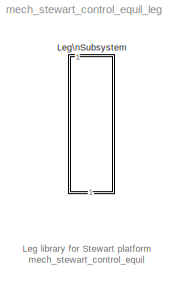
MODEL mech_stewart_control_equil_leg
KIND library
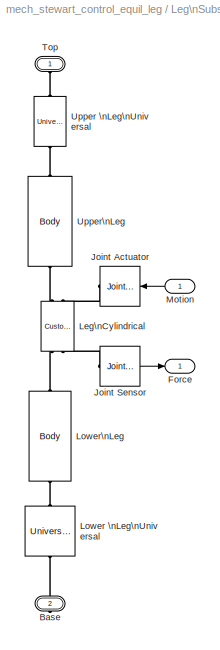
BLOCK [SubSystem] Leg\nSubsystem
  FunctionWithSeparateData = off
  MaskEnableString = on
  MaskHideContents = off
  MaskIconFrame = on
  MaskIconOpaque = on
  MaskIconRotate = none
  MaskIconUnits = autoscale
  MaskPromptString = Leg Number
  MaskStyleString = edit
  MaskToolTipString = on
  MaskTunableValueString = on
  MaskValueString = 1
  MaskVariables = ln=@1;
  MaskVisibilityString = on
  MinAlgLoopOccurrences = off
  Opaque = off
  Ports = [1, 1, 0, 0, 0, 1, 1]
  PropExecContextOutsideSubsystem = off
  RTWSystemCode = Auto
  RequestExecContextInheritance = off
BLOCK [PMIOPort] Leg\nSubsystem/Base
  Port = 2
  Side = Right
BLOCK [Outport] Leg\nSubsystem/Force
  Description = Senses position and velocity of the prismatic axis
  IconDisplay = Port number
  OutDataType = sfix(16)
  OutScaling = 2^0
BLOCK [Reference] Leg\nSubsystem/Joint Actuator  REF=mblibv1/Sensors & \nActuators/Joint Actuator
  AccelerationUnits = m/s^2
  ActiveIO = off
  ActuationStyle = Motion
  AngleUnits = deg
  ArcAccelerationUnits = deg/s^2
  ArcVelocityUnits = deg/s
  ClassName = JointActuator
  CoordPositionUnits = m
  DialogClass = MechanicalActuatorBlock
  DialogController = MECH.DynMechDlgSource
  ForceUnits = N
  FunctionWithSeparateData = off
  PhysicalDomain = Mechanical
  PortType = blob
  Ports = [1, 0, 0, 0, 0, 0, 1]
  Primitive = P1
  RTWMemSecDataConstants = Inherit from model
  RTWMemSecDataInternal = Inherit from model
  RTWMemSecDataParameters = Inherit from model
  RTWMemSecFuncExecute = Inherit from model
  RTWMemSecFuncInitTerm = Inherit from model
  ReferenceFrame = Absolute (INERTIAL)
  ShowPortLabels = FromPortIcon
  SourceBlock = mblibv1/Sensors & \nActuators/Joint Actuator
  SourceType = Joint Actuator
  SystemSampleTime = -1
  TorqueUnits = N-m
  VelocityUnits = m/s
  Width = 1
BLOCK [Reference] Leg\nSubsystem/Joint Sensor  REF=mblibv1/Sensors & \nActuators/Joint Sensor
  Acceleration = off
  AccelerationUnits = m/s^2
  ActiveIO = off
  Angle = on
  AngleUnits = deg
  ArcAcceleration = off
  ArcAccelerationUnits = deg/s^2
  ArcVelocity = off
  ArcVelocityUnits = deg/s
  ClassName = JointSensor
  CoordPosition = off
  CoordPositionUnits = m
  DialogClass = MechanicalSensorBlock
  DialogController = MECH.DynMechDlgSource
  Force = on
  ForceUnits = N
  FunctionWithSeparateData = off
  Muxed = on
  OutputVector = [ 1 ]
  PhysicalDomain = Mechanical
  PortType = blob
  Ports = [0, 1, 0, 0, 0, 1]
  Pose = off
  Primitive = P1
  Quaternion = on
  QuaternionDDT = off
  QuaternionDT = off
  QuaternionUnits = off
  RTWMemSecDataConstants = Inherit from model
  RTWMemSecDataInternal = Inherit from model
  RTWMemSecDataParameters = Inherit from model
  RTWMemSecFuncExecute = Inherit from model
  RTWMemSecFuncInitTerm = Inherit from model
  ReactionForce = off
  ReactionForceUnits = N
  ReactionMoment = off
  ReactionMomentUnits = N-m
  ReactionReferenceFrame = Absolute (World)
  ReactionSensedSide = Base
  ReferenceFrame = Absolute (INERTIAL)
  ShowPortLabels = FromPortIcon
  SourceBlock = mblibv1/Sensors & \nActuators/Joint Sensor
  SourceType = Joint Sensor
  SystemSampleTime = -1
  Torque = off
  TorqueUnits = N-m
  Velocity = off
  VelocityUnits = m/s
  Width = 1
BLOCK [Reference] Leg\nSubsystem/Leg\nCylindrical  REF=mblibv1/Joints/Custom Joint
  ClassName = Joint
  CutJoint = off
  DialogClass = JointBlock
  DialogController = MECH.DynMechDlgSource
  LConnTagsString = __newl0|SA1
  LeftPortType = blob
  MarkAsCut = off
  NumSAPorts = 2
  P1Axis = []
  P2Axis = []
  P3Axis = []
  PhysicalDomain = mechanical
  Ports = [0, 0, 0, 0, 0, 2, 2]
  PrimitiveProps = R1$WORLD$cyl1(ln,:)$revolute#P1$WORLD$cyl1(ln,:)$prismatic
  Primitives = revolute_prismatic
  R1Axis = [0 0 1]
  R2Axis = []
  R3Axis = []
  RConnTagsString = __newr0|SA1
  RightPortType = blob
  SAxis = []
  SourceBlock = mblibv1/Joints/Custom Joint
  SourceType = Custom Joint
  SubClassName = custom_joint
BLOCK [Reference] Leg\nSubsystem/Lower \nLeg\nUniversal  REF=mblibv1/Joints/Universal
  ClassName = Joint
  CutJoint = off
  DialogClass = JointBlock
  DialogController = MECH.DynMechDlgSource
  LConnTagsString = __newl0
  LeftPortType = blob
  MarkAsCut = off
  NumSAPorts = 0
  PhysicalDomain = mechanical
  Ports = [0, 0, 0, 0, 0, 1, 1]
  PrimitiveProps = R1$WORLD$rev1(ln,:)$revolute#R2$WORLD$rev2(ln,:)$revolute
  Primitives = revolute_revolute
  R1Axis = [0 0 1]
  R2Axis = [0 1 0]
  RConnTagsString = __newr0
  RightPortType = blob
  SourceBlock = mblibv1/Joints/Universal
  SourceType = Universal
  SubClassName = Unknown
BLOCK [Reference] Leg\nSubsystem/Lower\nLeg  REF=mblibv1/Bodies/Body
  AttachedToCS = 1
  BodyColor = [0.5 0.5 0.5]
  CG = Left$CG$lower_leg(ln).origin$WORLD$WORLD$m$lower_leg(ln).rotation$3x3 Transform$deg$WORLD$false
  CGPos = [0 0 0]
  CGRot = [0 0 0]
  CS0Pos = []
  CS0Rot = []
  CS10Pos = []
  CS10Rot = []
  CS11Pos = []
  CS11Rot = []
  CS12Pos = []
  CS12Rot = []
  CS13Pos = []
  CS13Rot = []
  CS14Pos = []
  CS14Rot = []
  CS15Pos = []
  CS15Rot = []
  CS16Pos = []
  CS16Rot = []
  CS17Pos = []
  CS17Rot = []
  CS18Pos = []
  CS18Rot = []
  CS19Pos = []
  CS19Rot = []
  CS1Pos = [0 0 0]
  CS1Rot = [0 0 0]
  CS20Pos = []
  CS20Rot = []
  CS2Pos = [0 0 0]
  CS2Rot = [0 0 0]
  CS3Pos = []
  CS3Rot = []
  CS4Pos = []
  CS4Rot = []
  CS5Pos = []
  CS5Rot = []
  CS6Pos = []
  CS6Rot = []
  CS7Pos = []
  CS7Rot = []
  CS8Pos = []
  CS8Rot = []
  CS9Pos = []
  CS9Rot = []
  ClassName = Body
  Density = 1
  DensityUnits = kg/m^3
  DensityUse = false
  DialogClass = MechanicalBodyBlock
  DialogController = MECH.DynMechDlgSource
  GraphicsMode = 1
  GraphicsObj = []
  Inertia = lower_leg_inertia
  InertiaUnits = kg*m^2
  LConnTagsString = CS1
  LeftPortType = workingframe
  Mass = lower_leg_mass
  MassUnits = kg
  PhysicalDomain = mechanical
  Ports = [0, 0, 0, 0, 0, 1, 1]
  RConnTagsString = CS3
  RightPortType = workingframe
  Shape = Cylinder
  ShapeDims = [1 1]
  ShapeUnits = m
  ShapeUse = false
  SourceBlock = mblibv1/Bodies/Body
  SourceType = Body
  SubClassName = Unknown
  WorkingFrames = Left$CS1$pos_base(ln,:)$WORLD$WORLD$m$lower_leg(ln).rotation$3x3 Transform$deg$WORLD$true#Right$CS3$(lower_leg(ln).end_point + upper_leg(ln).end_point)/2$WORLD$WORLD$m$lower_leg(ln).rotation$3x3 Transform$deg$WORLD$true#Right$CS2$lower_leg(ln).end_point$WORLD$WORLD$m$lower_leg(ln).rotation$3x3 Transform$deg$WORLD$false
BLOCK [Inport] Leg\nSubsystem/Motion
  Description = Applies a force (N) to the prismatic axis
  IconDisplay = Port number
  OutDataType = sfix(16)
  OutScaling = 2^0
BLOCK [PMIOPort] Leg\nSubsystem/Top
  Port = 1
  Side = Left
BLOCK [Reference] Leg\nSubsystem/Upper \nLeg\nUniversal  REF=mblibv1/Joints/Universal
  ClassName = Joint
  CutJoint = off
  DialogClass = JointBlock
  DialogController = MECH.DynMechDlgSource
  LConnTagsString = __newl0
  LeftPortType = blob
  MarkAsCut = off
  NumSAPorts = 0
  PhysicalDomain = mechanical
  Ports = [0, 0, 0, 0, 0, 1, 1]
  PrimitiveProps = R1$WORLD$rev3(ln,:)$revolute#R2$WORLD$rev4(ln,:)$revolute
  Primitives = revolute_revolute
  R1Axis = [0 0 1]
  R2Axis = [0 1 0]
  RConnTagsString = __newr0
  RightPortType = blob
  SourceBlock = mblibv1/Joints/Universal
  SourceType = Universal
  SubClassName = Unknown
BLOCK [Reference] Leg\nSubsystem/Upper\nLeg  REF=mblibv1/Bodies/Body
  AttachedToCS = 1
  BodyColor = [0.5 0.5 0.5]
  CG = Left$CG$upper_leg(ln).origin$WORLD$WORLD$m$upper_leg(ln).rotation$3x3 Transform$deg$WORLD$false
  CGPos = [0 0 0]
  CGRot = [0 0 0]
  CS0Pos = []
  CS0Rot = []
  CS10Pos = []
  CS10Rot = []
  CS11Pos = []
  CS11Rot = []
  CS12Pos = []
  CS12Rot = []
  CS13Pos = []
  CS13Rot = []
  CS14Pos = []
  CS14Rot = []
  CS15Pos = []
  CS15Rot = []
  CS16Pos = []
  CS16Rot = []
  CS17Pos = []
  CS17Rot = []
  CS18Pos = []
  CS18Rot = []
  CS19Pos = []
  CS19Rot = []
  CS1Pos = [0 0 0]
  CS1Rot = [0 0 0]
  CS20Pos = []
  CS20Rot = []
  CS2Pos = [0 0 0]
  CS2Rot = [0 0 0]
  CS3Pos = []
  CS3Rot = []
  CS4Pos = []
  CS4Rot = []
  CS5Pos = []
  CS5Rot = []
  CS6Pos = []
  CS6Rot = []
  CS7Pos = []
  CS7Rot = []
  CS8Pos = []
  CS8Rot = []
  CS9Pos = []
  CS9Rot = []
  ClassName = Body
  Density = 1
  DensityUnits = kg/m^3
  DensityUse = false
  DialogClass = MechanicalBodyBlock
  DialogController = MECH.DynMechDlgSource
  GraphicsMode = 1
  GraphicsObj = []
  Inertia = upper_leg_inertia
  InertiaUnits = kg*m^2
  LConnTagsString = CS3
  LeftPortType = workingframe
  Mass = upper_leg_mass
  MassUnits = kg
  PhysicalDomain = mechanical
  Ports = [0, 0, 0, 0, 0, 1, 1]
  RConnTagsString = CS2
  RightPortType = workingframe
  Shape = Cylinder
  ShapeDims = [1 1]
  ShapeUnits = m
  ShapeUse = false
  SourceBlock = mblibv1/Bodies/Body
  SourceType = Body
  SubClassName = Unknown
  WorkingFrames = Left$CS3$(lower_leg(ln).end_point + upper_leg(ln).end_point)/2$WORLD$WORLD$m$upper_leg(ln).rotation$3x3 Transform$deg$WORLD$true#Left$CS1$upper_leg(ln).end_point$WORLD$WORLD$m$upper_leg(ln).rotation$3x3 Transform$deg$WORLD$false#Right$CS2$pos_top(ln,:)$WORLD$WORLD$m$upper_leg(ln).rotation$3x3 Transform$deg$WORLD$true
ANNOTATION (root): Leg library for Stewart platform\nmech_stewart_control_equil
LINE Leg\nSubsystem/Joint Sensor:1 -> Leg\nSubsystem/Force:1
LINE Leg\nSubsystem/Motion:1 -> Leg\nSubsystem/Joint Actuator:1
PLINE Leg\nSubsystem/Base:RConn1 -- Leg\nSubsystem/Lower \nLeg\nUniversal:LConn1
PLINE Leg\nSubsystem/Joint Actuator:RConn1 -- Leg\nSubsystem/Leg\nCylindrical:RConn2
PLINE Leg\nSubsystem/Joint Sensor:LConn1 -- Leg\nSubsystem/Leg\nCylindrical:LConn2
PLINE Leg\nSubsystem/Leg\nCylindrical:LConn1 -- Leg\nSubsystem/Lower\nLeg:RConn1
PLINE Leg\nSubsystem/Leg\nCylindrical:RConn1 -- Leg\nSubsystem/Upper\nLeg:LConn1
PLINE Leg\nSubsystem/Lower \nLeg\nUniversal:RConn1 -- Leg\nSubsystem/Lower\nLeg:LConn1
PLINE Leg\nSubsystem/Top:RConn1 -- Leg\nSubsystem/Upper \nLeg\nUniversal:RConn1
PLINE Leg\nSubsystem/Upper \nLeg\nUniversal:LConn1 -- Leg\nSubsystem/Upper\nLeg:RConn1
